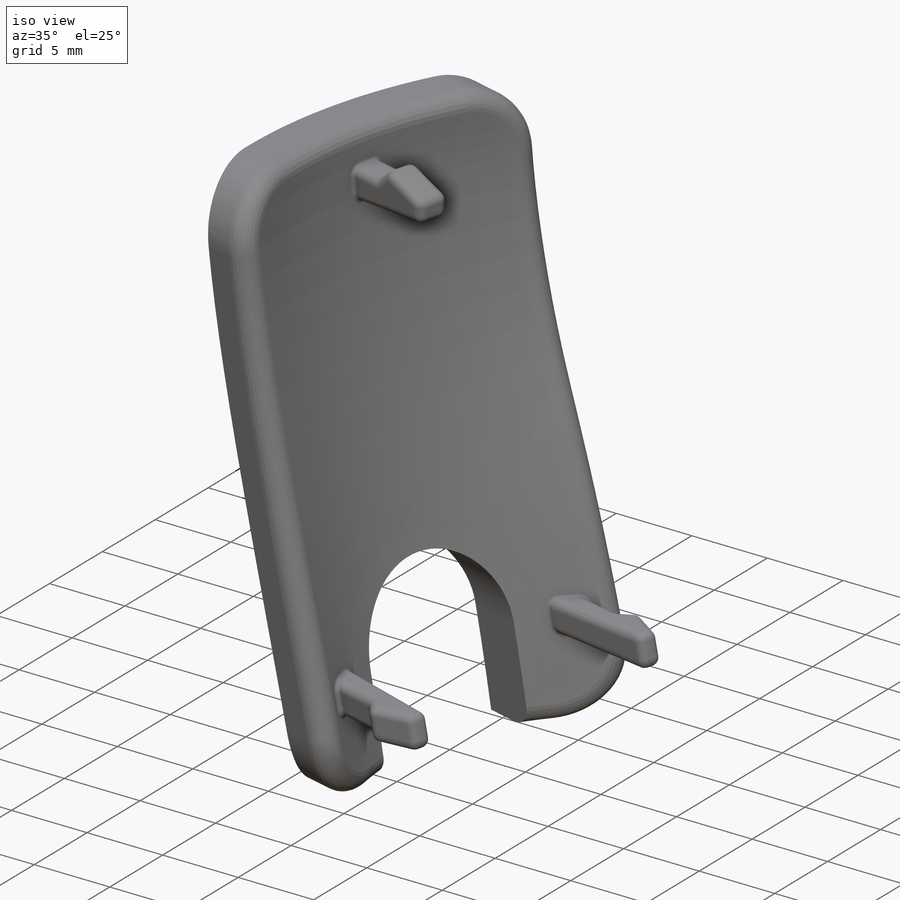
[diagram: iso view]
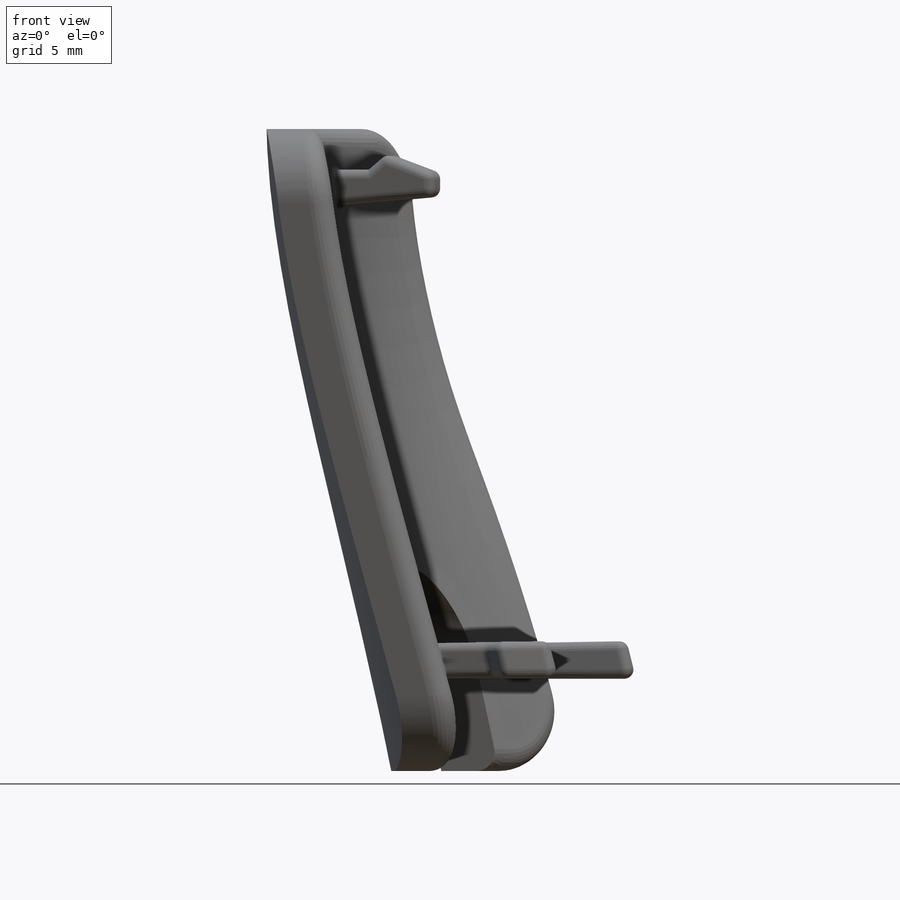
[diagram: front view]
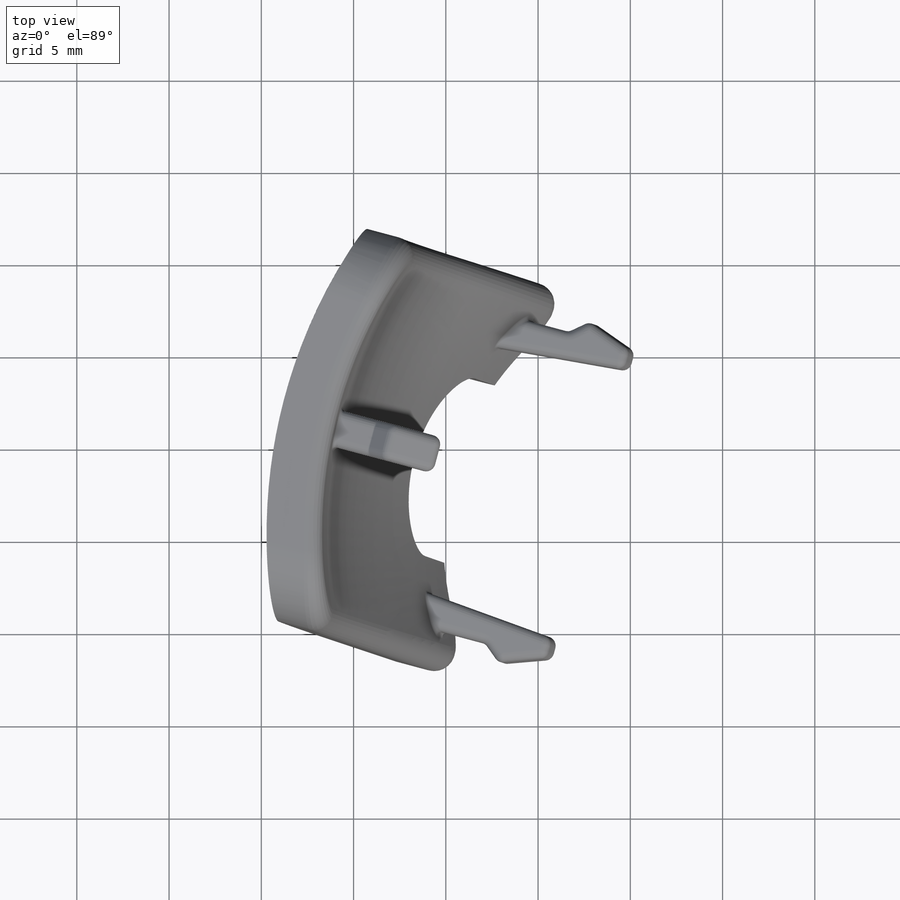
[diagram: top view]
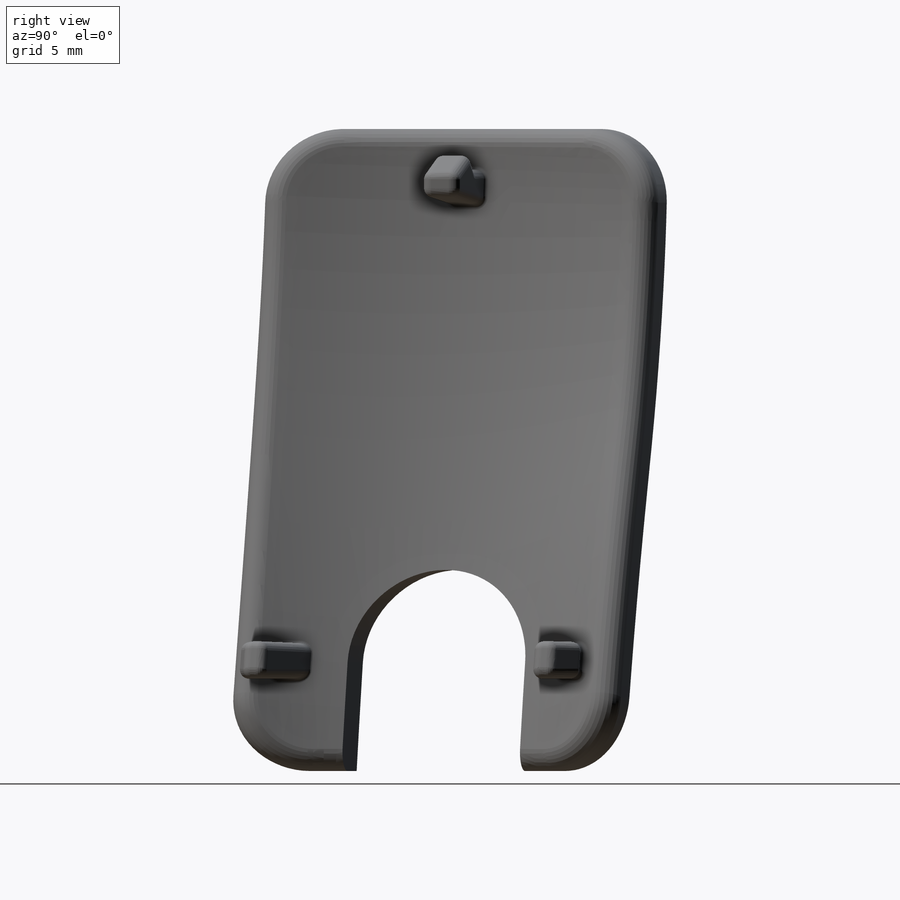
[diagram: right view]
SOLIDWORKS PART (.sldprt)
format: sldprt  version: not decoded by parser v0  size: 8,849,920 bytes
history: native  units: mm
features: plane x49, fillet x9, sketch x5, move_body x3, delete_body x2, surface_op x2, mirror x2, material x1, extrude x1, cut_extrude x1, sweep x1 + 2 further entries (+14 scaffold rows collapsed; 5 parser-record rows omitted)
feature tree (97):
  scaffold x14  (default folders/planes/origin — collapsed)
  material  "Material <nicht festgelegt>"
  plane  "Vorne"
  plane  "Oben"
  plane  "Rechts"
  plane  "Vorne-p-vorlage-skelett-design-v02"
  plane  "Oben-p-vorlage-skelett-design-v02"
  plane  "Rechts-p-vorlage-skelett-design-v02"
  plane  "schulter vv-p-vorlage-skelett-design-v02"
  plane  "schulter vl-p-vorlage-skelett-design-v02"
  plane  "Umlenkebene Brustkorbmuskeln-p-vorlage-skelett-design-v02"
  plane  "Ebene1-p-vorlage-skelett-design-v02"
  plane  "Ebene2-p-vorlage-skelett-design-v02"
  plane  "Ebene3-p-vorlage-skelett-design-v02"
  plane  "Ebene7-p-vorlage-skelett-design-v02"
  plane  "Ebene5-p-vorlage-skelett-design-v02"
  plane  "Ebene8-p-vorlage-skelett-design-v02"
  plane  "Ebene9-p-vorlage-skelett-design-v02"
  plane  "Ebene10-p-vorlage-skelett-design-v02"
  plane  "Ebene11-p-vorlage-skelett-design-v02"
  plane  "Rückgrat vl-p-vorlage-skelett-design-v02"
  plane  "Ebene14-p-vorlage-skelett-design-v02"
  plane  "Ebene18-p-vorlage-skelett-design-v02"
  plane  "Ebene19-p-vorlage-skelett-design-v02"
  plane  "Ebene20-p-vorlage-skelett-design-v02"
  plane  "Ebene21-p-vorlage-skelett-design-v02"
  plane  "Schlüsselbeinebene-p-vorlage-skelett-design-v02"
  plane  "Motorgürtel-p-vorlage-skelett-design-v02"
  plane  "Motorgürtel 2-p-vorlage-skelett-design-v02"
  plane  "Ebene35-p-vorlage-skelett-design-v02"
  plane  "Ebene23-p-vorlage-skelett-design-v02"
  plane  "Ebene24-p-vorlage-skelett-design-v02"
  plane  "Ebene25-p-vorlage-skelett-design-v02"
  plane  "Ebene26-p-vorlage-skelett-design-v02"
  plane  "Ebene27-p-vorlage-skelett-design-v02"
  plane  "Ebene28-p-vorlage-skelett-design-v02"
  plane  "Ebene29-p-vorlage-skelett-design-v02"
  plane  "Ebene30-p-vorlage-skelett-design-v02"
  plane  "Ebene31-p-vorlage-skelett-design-v02"
  plane  "Ebene32-p-vorlage-skelett-design-v02"
  plane  "Ebene33-p-vorlage-skelett-design-v02"
  plane  "Ebene34-p-vorlage-skelett-design-v02"
  plane  "Ebene36-p-vorlage-skelett-design-v02"
  plane  "Ebene37-p-vorlage-skelett-design-v02"
  plane  "Ebene38-p-vorlage-skelett-design-v02"
  plane  "Ebene39-p-vorlage-skelett-design-v02"
  "p-vorlage-skelett-design-v02"
  parser-record x5  (decoder bookkeeping rows leaked as tree rows — omitted from the tree; the rows remain in map.json)
  move_body  "Körper-Verschieben/Kopieren2"
  "Deckungsgleich1"
  delete_body  "Körper-Löschen1"
  delete_body  "Körper-Löschen2"
  plane  "Ebene42"  Offset=3mm
  plane  "Ebene43"
  sketch  "Skizze2"  dims[D1=33.1mm D2=34.8mm D3=10.9mm D4=21.8mm]
  surface_op  "Oberfläche-Linear austragen1"
  surface_op  "Oberfläche-Trimmen2"
  fillet  "Verrundung1"  Radius=4mm
  fillet  "Verrundung2"  Radius=1mm
  plane  "Ebene44"  Offset=2.2mm
  sketch  "Skizze3"  dims[c1.D4=0.5mm c1.D1=22.0mm c1.D2=2.3mm c1.D3=2.4mm c2.D3=140.0deg c2.D4=2.4mm c2.D5=0.75mm c2.D6=~3.221198mm c3.D6=20.0deg c3.D7=2.0mm c3.D8=2.0mm c4.D8=85.0deg c4.D9=6.0mm]
  extrude  "Aufsatz-Linear austragen1"  Depth=2mm
  fillet  "Verrundung3"  Radius=0.5mm
  fillet  "Verrundung5"  Radius=0.1mm
  fillet  "Verrundung6"  Radius=0.5mm
  fillet  "Verrundung7"  Radius=0.2mm
  sketch  "Skizze4"  dims[D1=10.0mm D2=62.0mm D3=8.0mm]
  cut_extrude  "Schnitt-Linear austragen1"  [1 undecoded]
  plane  "Ebene45"  Offset=8mm
  plane  "Ebene46"  Offset=5mm
  sketch  "Skizze5"  dims[c1.D4=0.5mm c1.D1=16.0mm c1.D2=2.3mm c2.D2=140.0deg c3.D2=~0.922734mm c4.D2=140.0deg c4.D3=~0.633022mm c5.D3=120.0deg c6.D3=~1.054857mm c7.D3=120.0deg c7.D4=~3.56517mm c7.D5=0.75mm c7.D6=5.4mm c7.D7=7.0mm c7.D8=2.0mm c7.D9=~0.517638mm c8.D9=85.0deg c8.D10=0.75mm c8.D7=3.5mm]
  sketch  "Skizze7"  dims[D1=2.0mm]
  sweep  "Austragung1"
  fillet  "Verrundung9"  Radius=0.5mm
  fillet  "Verrundung10"  Radius=0.5mm
  fillet  "Verrundung11"  Radius=0.2mm
  mirror  "Spiegeln1"
  move_body  "Körper-Verschieben/Kopieren3"
  mirror  "Gespiegelte Komponenten-Features2"
  move_body  "Körper-Verschieben/Kopieren4"
decode coverage: 15 of 26 modeling features carry decoded parameters; 2 rows unclassified (native names shown)
note: ~ marks probable driven/reference dimensions
note: 1 parameter value undecoded
note: suppression state not decoded; provenance and decode notes live in map.json
